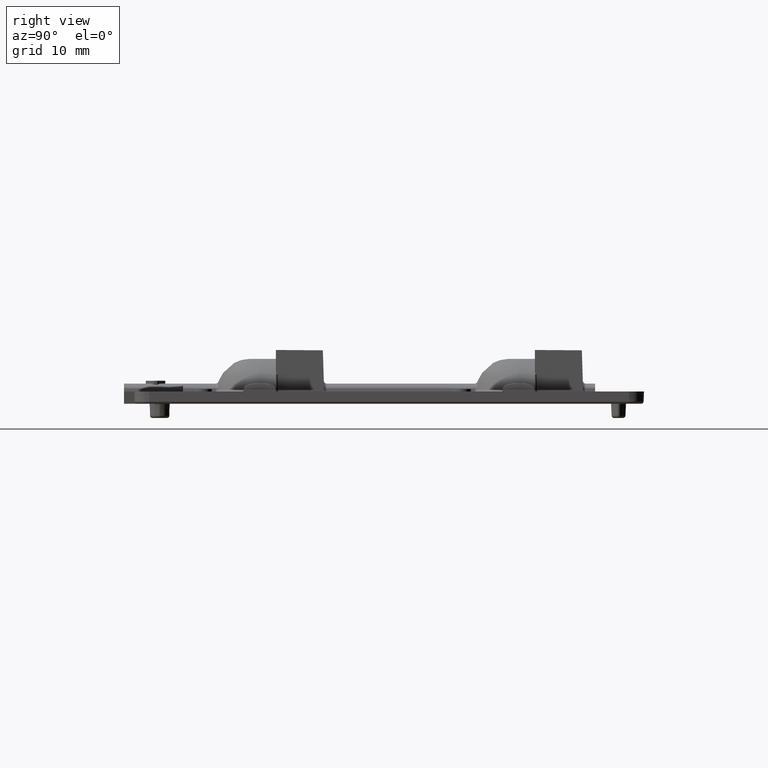
[diagram: clean part render]
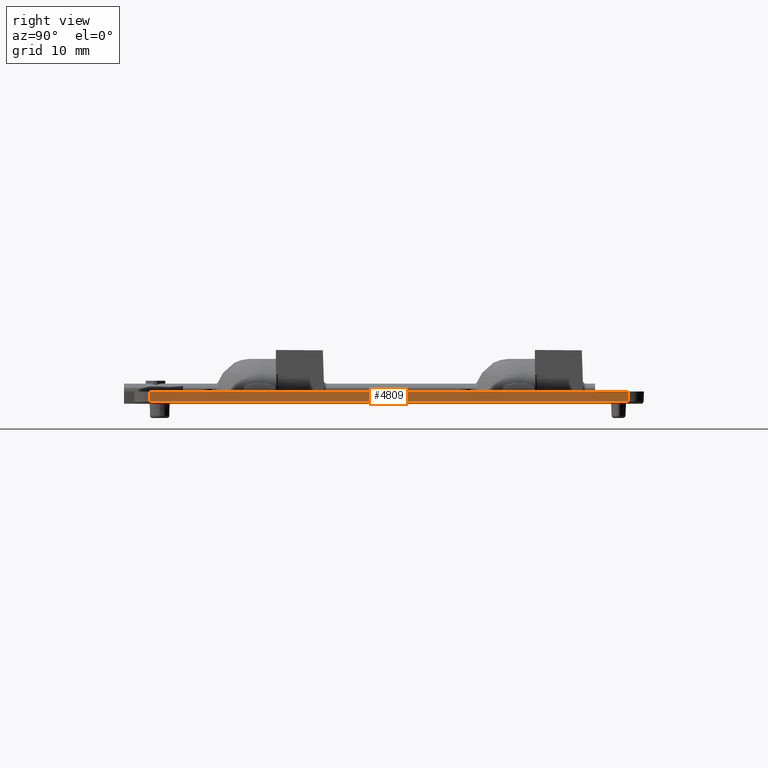
[diagram: same view with one face highlighted and labeled with its STEP entity id]
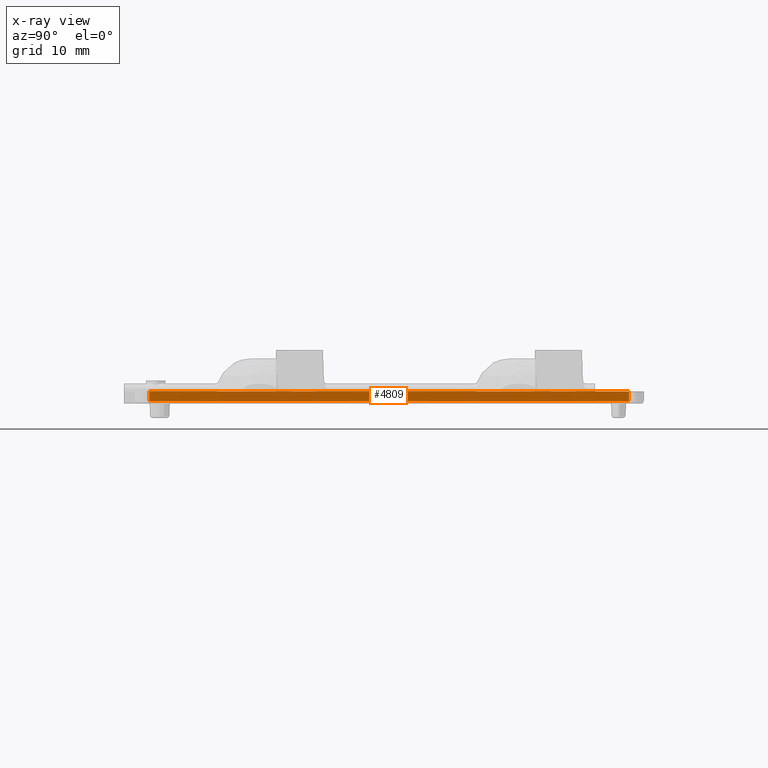
[diagram: x-ray of the same camera — body ghosted, the highlighted face saturated]
A machine part, right view. The second image highlights one B-rep face of the part: STEP entity #4809.
The next image is the same camera in x-ray: the body ghosted, the highlighted face saturated — about 0% of this face is hidden behind the body in this view.
In plain terms, the highlighted planar face has unit normal (0.9994, 0, -0.0349).
Its self-contained STEP definition (entity closure, byte-faithful):
#1090 = FACE_OUTER_BOUND ( 'NONE', #11258, .T. ) ;
#1948 = CARTESIAN_POINT ( 'NONE',  ( 24.96652058966292000, -23.50000000000000000, 0.2412751258243749100 ) ) ;
#3025 = CARTESIAN_POINT ( 'NONE',  ( 24.96652058966291000, 23.50000000000000000, 0.2412751258243748800 ) ) ;
#3180 = AXIS2_PLACEMENT_3D ( 'NONE', #17014, #17250, #16920 ) ;
#3287 = VECTOR ( 'NONE', #15225, 1000.000000000000000 ) ;
#4809 = ADVANCED_FACE ( 'NONE', ( #1090 ), #16945, .T. ) ;
#7435 = DIRECTION ( 'NONE',  ( 0.03489949670250100400, 9.686556196736583800E-018, 0.9993908270190956500 ) ) ;
#7776 = ORIENTED_EDGE ( 'NONE', *, *, #23088, .T. ) ;
#8350 = DIRECTION ( 'NONE',  ( -0.03489949670250100400, -9.686556196736583800E-018, -0.9993908270190956500 ) ) ;
#8383 = ORIENTED_EDGE ( 'NONE', *, *, #18373, .F. ) ;
#8919 = CARTESIAN_POINT ( 'NONE',  ( 25.00000000000000000, 25.00000000000000000, 1.200000000000000000 ) ) ;
#9511 = ORIENTED_EDGE ( 'NONE', *, *, #22975, .T. ) ;
#11258 = EDGE_LOOP ( 'NONE', ( #12781, #9511, #7776, #8383 ) ) ;
#12781 = ORIENTED_EDGE ( 'NONE', *, *, #22873, .T. ) ;
#13590 = VERTEX_POINT ( 'NONE', #1948 ) ;
#14736 = VECTOR ( 'NONE', #8350, 1000.000000000000200 ) ;
#15225 = DIRECTION ( 'NONE',  ( -2.775557561562891400E-016, 1.000000000000000000, -1.874301782732314100E-036 ) ) ;
#16632 = VERTEX_POINT ( 'NONE', #22144 ) ;
#16920 = DIRECTION ( 'NONE',  ( -0.03489949670250099700, 0.0000000000000000000, -0.9993908270190956500 ) ) ;
#16945 = PLANE ( 'NONE',  #3180 ) ;
#17014 = CARTESIAN_POINT ( 'NONE',  ( 25.00000000000000000, 25.00000000000000000, 1.200000000000000000 ) ) ;
#17250 = DIRECTION ( 'NONE',  ( 0.9993908270190957600, 2.773866766889443100E-016, -0.03489949670250100400 ) ) ;
#18373 = EDGE_CURVE ( 'NONE', #26231, #25410, #24586, .T. ) ;
#18607 = VECTOR ( 'NONE', #19038, 1000.000000000000000 ) ;
#18827 = LINE ( 'NONE', #21625, #22914 ) ;
#19038 = DIRECTION ( 'NONE',  ( -2.775557561562891400E-016, 1.000000000000000000, -0.0000000000000000000 ) ) ;
#21265 = CARTESIAN_POINT ( 'NONE',  ( 25.00000000000001400, -23.50000000000000000, 1.200000000000000000 ) ) ;
#21625 = CARTESIAN_POINT ( 'NONE',  ( 25.00000000000000000, 23.50000000000000000, 1.200000000000000000 ) ) ;
#22144 = CARTESIAN_POINT ( 'NONE',  ( 24.96652058966291000, 23.50000000000000000, 0.2412751258243751000 ) ) ;
#22873 = EDGE_CURVE ( 'NONE', #26231, #13590, #26116, .T. ) ;
#22914 = VECTOR ( 'NONE', #7435, 1000.000000000000200 ) ;
#22975 = EDGE_CURVE ( 'NONE', #13590, #16632, #24171, .T. ) ;
#23088 = EDGE_CURVE ( 'NONE', #16632, #25410, #18827, .T. ) ;
#24085 = CARTESIAN_POINT ( 'NONE',  ( 25.00000000000000000, 23.50000000000000000, 1.200000000000000000 ) ) ;
#24171 = LINE ( 'NONE', #3025, #3287 ) ;
#24464 = CARTESIAN_POINT ( 'NONE',  ( 25.00000000000001400, -23.50000000000000000, 1.200000000000000000 ) ) ;
#24586 = LINE ( 'NONE', #8919, #18607 ) ;
#25410 = VERTEX_POINT ( 'NONE', #24085 ) ;
#26116 = LINE ( 'NONE', #24464, #14736 ) ;
#26231 = VERTEX_POINT ( 'NONE', #21265 ) ;